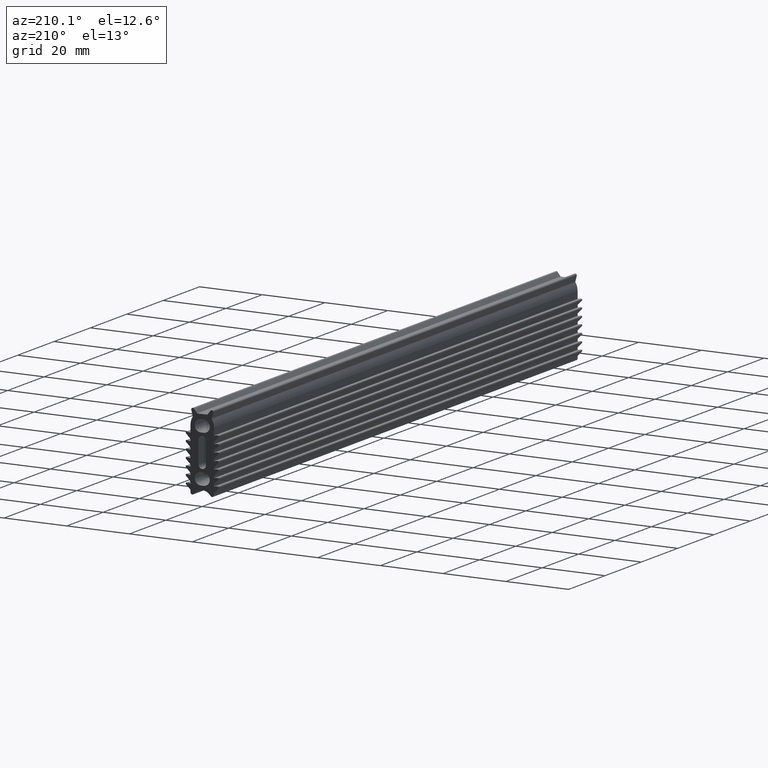
[diagram: clean part render]
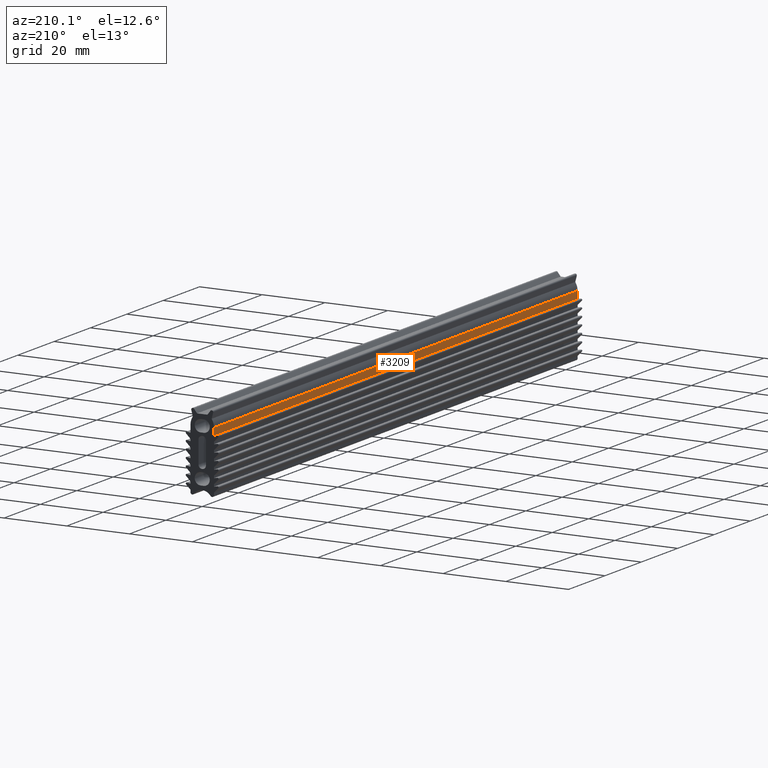
[diagram: same view with one face highlighted and labeled with its STEP entity id]
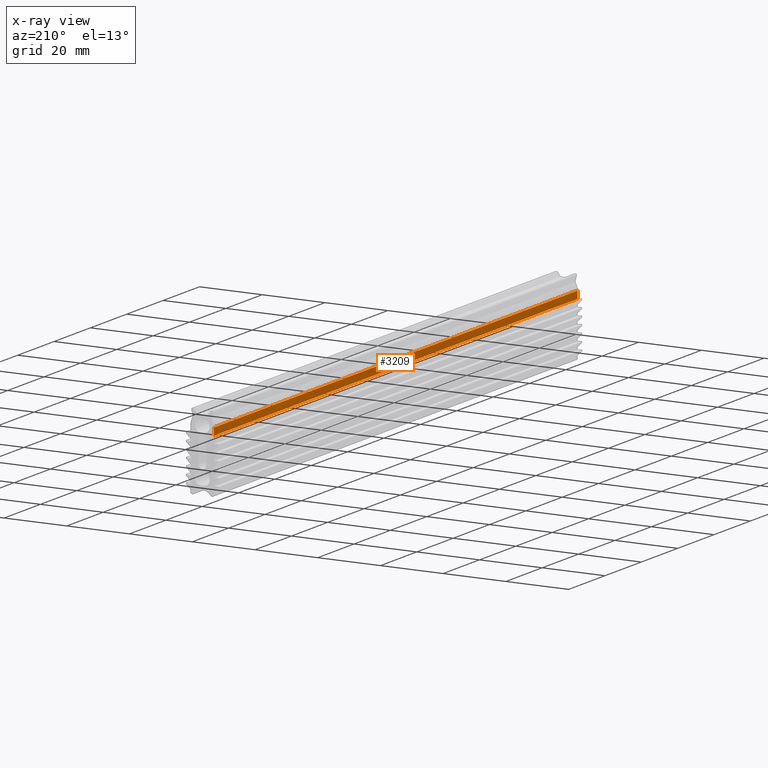
[diagram: x-ray of the same camera — body ghosted, the highlighted face saturated]
A machine part, auxiliary view. The second image highlights one B-rep face of the part: STEP entity #3209.
The next image is the same camera in x-ray: the body ghosted, the highlighted face saturated — about 0% of this face is hidden behind the body in this view.
In plain terms, the highlighted face is a freeform B-spline surface patch.
Its self-contained STEP definition (entity closure, byte-faithful):
#75=CARTESIAN_POINT('',(-3.750000000000000,0.0,-3.392795526060240));
#76=VERTEX_POINT('',#75);
#90=CARTESIAN_POINT('',(-3.750000000000000,0.0,-5.695682565608070));
#91=VERTEX_POINT('',#90);
#92=CARTESIAN_POINT('',(-3.750000000000000,0.0,-5.695682565608070));
#93=CARTESIAN_POINT('',(-3.750000000000000,0.0,-3.392795526060240));
#94=QUASI_UNIFORM_CURVE('',1,(#92,#93),.UNSPECIFIED.,.F.,.U.);
#95=EDGE_CURVE('',#91,#76,#94,.T.);
#1565=CARTESIAN_POINT('',(-3.750000000000000,200.0,-5.695682565608070));
#1566=VERTEX_POINT('',#1565);
#1572=CARTESIAN_POINT('',(-3.750000000000000,200.0,-3.392795526060240));
#1573=VERTEX_POINT('',#1572);
#1574=CARTESIAN_POINT('',(-3.750000000000000,200.0,-5.695682565608070));
#1575=CARTESIAN_POINT('',(-3.750000000000000,200.0,-3.392795526060240));
#1576=QUASI_UNIFORM_CURVE('',1,(#1574,#1575),.UNSPECIFIED.,.F.,.U.);
#1577=EDGE_CURVE('',#1566,#1573,#1576,.T.);
#3184=CARTESIAN_POINT('',(-3.750000000000000,200.0,-5.695682565608070));
#3185=CARTESIAN_POINT('',(-3.750000000000000,0.0,-5.695682565608070));
#3186=QUASI_UNIFORM_CURVE('',1,(#3184,#3185),.UNSPECIFIED.,.F.,.U.);
#3187=EDGE_CURVE('',#1566,#91,#3186,.T.);
#3194=CARTESIAN_POINT('',(-3.750000000000000,-9.989999612361194,-3.277766352743654));
#3195=CARTESIAN_POINT('',(-3.750000000000000,-9.989999612361194,-5.810711656566999));
#3196=CARTESIAN_POINT('',(-3.750000000000000,209.990004976779200,-3.277766352743654));
#3197=CARTESIAN_POINT('',(-3.750000000000000,209.990004976779200,-5.810711656566999));
#3198=B_SPLINE_SURFACE_WITH_KNOTS('',1,1,((#3194,#3196),(#3195,#3197)),.UNSPECIFIED.,.F.,.F.,.U.,(2,2),(2,2),(0.0,2.532945303823346),(0.0,219.980004589140410),.UNSPECIFIED.);
#3199=ORIENTED_EDGE('',*,*,#95,.T.);
#3200=CARTESIAN_POINT('',(-3.750000000000000,200.0,-3.392795526060240));
#3201=CARTESIAN_POINT('',(-3.750000000000000,0.0,-3.392795526060240));
#3202=QUASI_UNIFORM_CURVE('',1,(#3200,#3201),.UNSPECIFIED.,.F.,.U.);
#3203=EDGE_CURVE('',#1573,#76,#3202,.T.);
#3204=ORIENTED_EDGE('',*,*,#3203,.F.);
#3205=ORIENTED_EDGE('',*,*,#1577,.F.);
#3206=ORIENTED_EDGE('',*,*,#3187,.T.);
#3207=EDGE_LOOP('',(#3199,#3204,#3205,#3206));
#3208=FACE_OUTER_BOUND('',#3207,.T.);
#3209=ADVANCED_FACE('',(#3208),#3198,.F.);